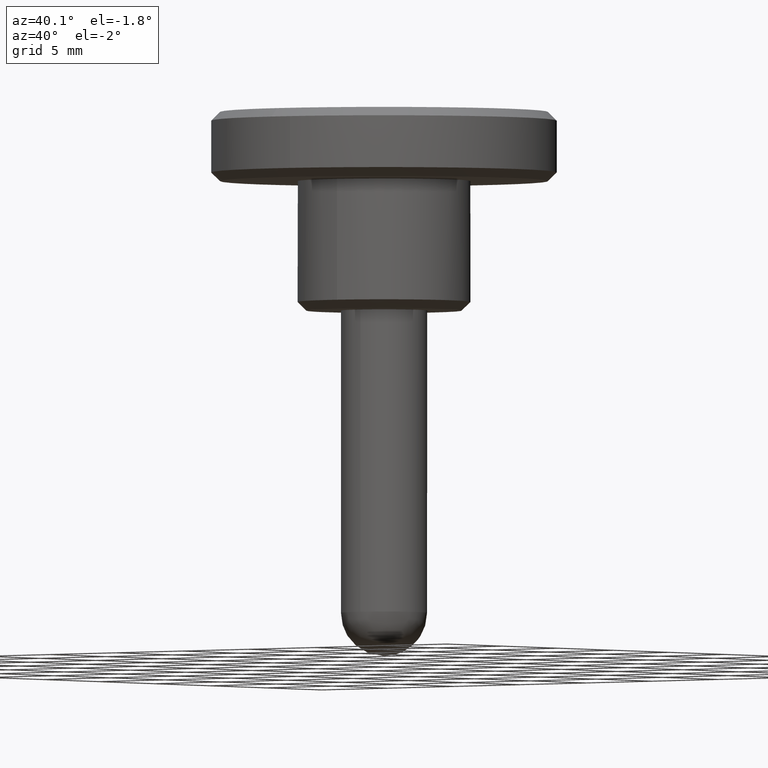
[diagram: clean part render]
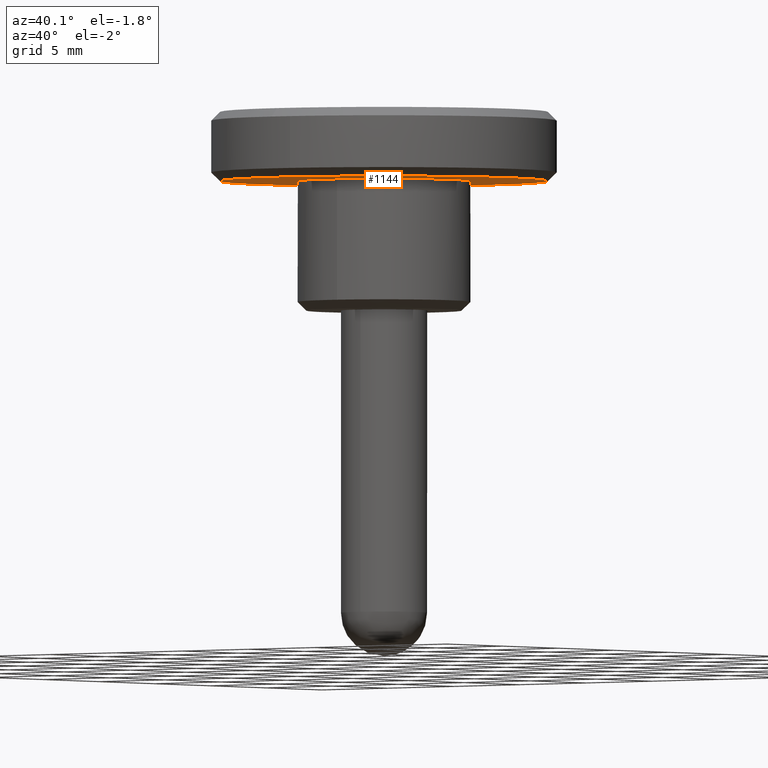
[diagram: same view with one face highlighted and labeled with its STEP entity id]
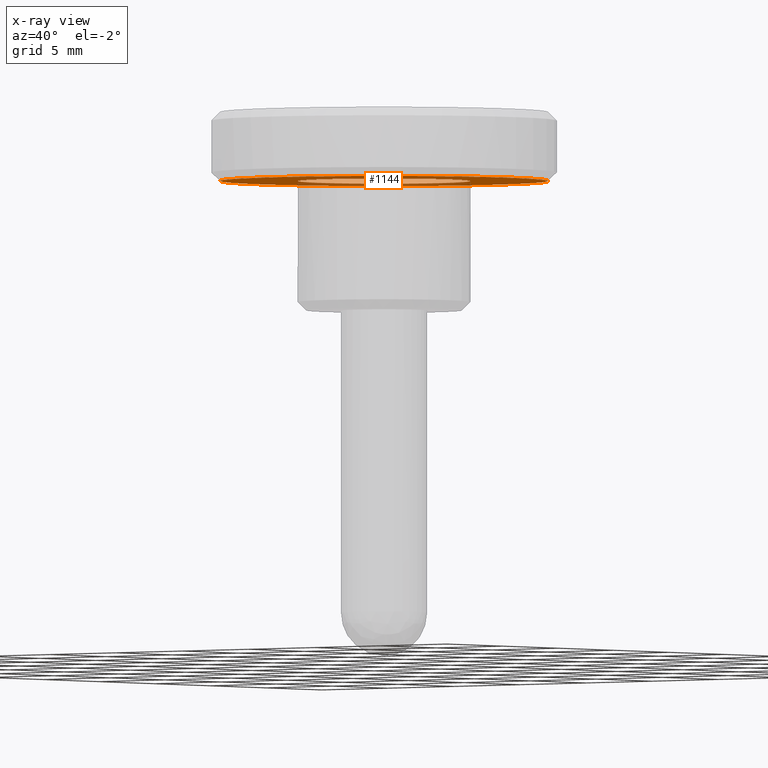
[diagram: x-ray of the same camera — body ghosted, the highlighted face saturated]
A machine part, auxiliary view. The second image highlights one B-rep face of the part: STEP entity #1144.
The next image is the same camera in x-ray: the body ghosted, the highlighted face saturated — about 25% of this face is hidden behind the body in this view.
In plain terms, the highlighted face is a freeform B-spline surface patch.
Its self-contained STEP definition (entity closure, byte-faithful):
#286=CARTESIAN_POINT('',(9.500000000000000,0.0,7.500000000000110));
#287=VERTEX_POINT('',#286);
#288=CARTESIAN_POINT('',(7.779228070748030,-5.452853438640519,7.500000000000470));
#289=VERTEX_POINT('',#288);
#290=CARTESIAN_POINT('',(9.500000000000000,0.0,7.500000000000110));
#291=CARTESIAN_POINT('',(9.500000000000000,-2.997941080184359,7.500000000000111));
#292=CARTESIAN_POINT('',(7.779228070748030,-5.452853438640519,7.500000000000470));
#300=(BOUNDED_CURVE()B_SPLINE_CURVE(2,(#290,#291,#292),.UNSPECIFIED.,.F.,.U.)B_SPLINE_CURVE_WITH_KNOTS((3,3),(0.0,0.098673726203164),.UNSPECIFIED.)CURVE()GEOMETRIC_REPRESENTATION_ITEM()RATIONAL_B_SPLINE_CURVE((1.0,0.884396538880152,0.860049271925728))REPRESENTATION_ITEM(''));
#301=EDGE_CURVE('',#287,#289,#300,.T.);
#303=CARTESIAN_POINT('',(-9.500000000000000,0.0,7.500000000000110));
#304=VERTEX_POINT('',#303);
#305=CARTESIAN_POINT('',(-9.500000000000000,0.0,7.500000000000110));
#306=CARTESIAN_POINT('',(-9.500000000000000,9.500000000000000,7.500000000000110));
#307=CARTESIAN_POINT('',(0.0,9.500000000000000,7.500000000000110));
#308=CARTESIAN_POINT('',(9.500000000000000,9.500000000000000,7.500000000000110));
#309=CARTESIAN_POINT('',(9.500000000000000,0.0,7.500000000000110));
#317=(BOUNDED_CURVE()B_SPLINE_CURVE(2,(#305,#306,#307,#308,#309),.UNSPECIFIED.,.F.,.U.)B_SPLINE_CURVE_WITH_KNOTS((3,2,3),(0.500000000000000,0.750000000000000,1.0),.UNSPECIFIED.)CURVE()GEOMETRIC_REPRESENTATION_ITEM()RATIONAL_B_SPLINE_CURVE((1.0,0.707106781186548,1.0,0.707106781186548,1.0))REPRESENTATION_ITEM(''));
#318=EDGE_CURVE('',#304,#287,#317,.T.);
#320=CARTESIAN_POINT('',(0.082902087267421,-9.499638269113834,7.500000000004551));
#321=VERTEX_POINT('',#320);
#322=CARTESIAN_POINT('',(0.082902087267421,-9.499638269113834,7.500000000004551));
#323=CARTESIAN_POINT('',(0.041451832829496,-9.500000000000000,7.500000000000111));
#324=CARTESIAN_POINT('',(0.0,-9.500000000000000,7.500000000000110));
#325=CARTESIAN_POINT('',(-9.500000000000000,-9.500000000000000,7.500000000000110));
#326=CARTESIAN_POINT('',(-9.500000000000000,0.0,7.500000000000110));
#334=(BOUNDED_CURVE()B_SPLINE_CURVE(2,(#322,#323,#324,#325,#326),.UNSPECIFIED.,.F.,.U.)B_SPLINE_CURVE_WITH_KNOTS((3,2,3),(0.248460105663796,0.250000000000000,0.500000000000000),.UNSPECIFIED.)CURVE()GEOMETRIC_REPRESENTATION_ITEM()RATIONAL_B_SPLINE_CURVE((0.996414028097588,0.998195901564946,1.0,0.707106781186548,1.0))REPRESENTATION_ITEM(''));
#335=EDGE_CURVE('',#321,#304,#334,.T.);
#430=CARTESIAN_POINT('',(7.779228070748030,-5.452853438640519,7.500000000000470));
#431=CARTESIAN_POINT('',(4.972542842353667,-9.456967020661594,7.500000000000111));
#432=CARTESIAN_POINT('',(0.082902087267421,-9.499638269113834,7.500000000004551));
#440=(BOUNDED_CURVE()B_SPLINE_CURVE(2,(#430,#431,#432),.UNSPECIFIED.,.F.,.U.)B_SPLINE_CURVE_WITH_KNOTS((3,3),(0.098673726203164,0.248460105663795),.UNSPECIFIED.)CURVE()GEOMETRIC_REPRESENTATION_ITEM()RATIONAL_B_SPLINE_CURVE((0.860049271925728,0.823090203821257,0.996414028097588))REPRESENTATION_ITEM(''));
#441=EDGE_CURVE('',#289,#321,#440,.T.);
#887=CARTESIAN_POINT('',(-0.043632685768200,4.999809615248630,7.500000000000000));
#888=VERTEX_POINT('',#887);
#894=CARTESIAN_POINT('',(5.0,0.0,7.500000000000000));
#895=VERTEX_POINT('',#894);
#896=CARTESIAN_POINT('',(-0.043632685768200,4.999809615248630,7.500000000000001));
#897=CARTESIAN_POINT('',(-0.021816762380311,4.999999999999999,7.500000000000000));
#898=CARTESIAN_POINT('',(0.0,5.0,7.500000000000000));
#899=CARTESIAN_POINT('',(5.000000000000001,5.000000000000001,7.500000000000000));
#900=CARTESIAN_POINT('',(5.0,0.0,7.500000000000000));
#908=(BOUNDED_CURVE()B_SPLINE_CURVE(2,(#896,#897,#898,#899,#900),.UNSPECIFIED.,.F.,.U.)B_SPLINE_CURVE_WITH_KNOTS((3,2,3),(0.248460105081864,0.250000000000000,0.500000000000000),.UNSPECIFIED.)CURVE()GEOMETRIC_REPRESENTATION_ITEM()RATIONAL_B_SPLINE_CURVE((0.996414026750837,0.998195900883171,1.0,0.707106781186548,1.0))REPRESENTATION_ITEM(''));
#909=EDGE_CURVE('',#888,#895,#908,.T.);
#911=CARTESIAN_POINT('',(0.620634893490197,-4.961331709224432,7.500000000000000));
#912=VERTEX_POINT('',#911);
#913=CARTESIAN_POINT('',(5.0,0.0,7.500000000000000));
#914=CARTESIAN_POINT('',(5.0,-4.413497588122099,7.499999999999999));
#915=CARTESIAN_POINT('',(0.620634893490197,-4.961331709224433,7.500000000000001));
#923=(BOUNDED_CURVE()B_SPLINE_CURVE(2,(#913,#914,#915),.UNSPECIFIED.,.F.,.U.)B_SPLINE_CURVE_WITH_KNOTS((3,3),(0.500000000000000,0.728526244963649),.UNSPECIFIED.)CURVE()GEOMETRIC_REPRESENTATION_ITEM()RATIONAL_B_SPLINE_CURVE((1.0,0.732264850116981,0.954005767814331))REPRESENTATION_ITEM(''));
#924=EDGE_CURVE('',#895,#912,#923,.T.);
#959=CARTESIAN_POINT('',(-5.0,0.0,7.500000000000000));
#960=VERTEX_POINT('',#959);
#961=CARTESIAN_POINT('',(0.620634893490197,-4.961331709224433,7.500000000000001));
#962=CARTESIAN_POINT('',(0.311522049263574,-5.0,7.500000000000000));
#963=CARTESIAN_POINT('',(0.0,-5.0,7.500000000000000));
#964=CARTESIAN_POINT('',(-5.000000000000001,-5.000000000000001,7.500000000000000));
#965=CARTESIAN_POINT('',(-5.0,0.0,7.500000000000000));
#973=(BOUNDED_CURVE()B_SPLINE_CURVE(2,(#961,#962,#963,#964,#965),.UNSPECIFIED.,.F.,.U.)B_SPLINE_CURVE_WITH_KNOTS((3,2,3),(0.728526244963649,0.750000000000000,1.0),.UNSPECIFIED.)CURVE()GEOMETRIC_REPRESENTATION_ITEM()RATIONAL_B_SPLINE_CURVE((0.954005767814331,0.974841931069566,1.0,0.707106781186548,1.0))REPRESENTATION_ITEM(''));
#974=EDGE_CURVE('',#912,#960,#973,.T.);
#976=CARTESIAN_POINT('',(-5.0,0.0,7.500000000000000));
#977=CARTESIAN_POINT('',(-5.0,4.956556036564801,7.500000000000000));
#978=CARTESIAN_POINT('',(-0.043632685768200,4.999809615248630,7.500000000000000));
#986=(BOUNDED_CURVE()B_SPLINE_CURVE(2,(#976,#977,#978),.UNSPECIFIED.,.F.,.U.)B_SPLINE_CURVE_WITH_KNOTS((3,3),(0.0,0.248460105081864),.UNSPECIFIED.)CURVE()GEOMETRIC_REPRESENTATION_ITEM()RATIONAL_B_SPLINE_CURVE((1.0,0.708910880303377,0.996414026750837))REPRESENTATION_ITEM(''));
#987=EDGE_CURVE('',#960,#888,#986,.T.);
#1127=CARTESIAN_POINT('',(-10.449049963174311,-10.448670594845110,7.500000000000110));
#1128=CARTESIAN_POINT('',(10.449050472794029,-10.448670594845110,7.500000000000110));
#1129=CARTESIAN_POINT('',(-10.449049963174311,10.449032424841221,7.500000000000110));
#1130=CARTESIAN_POINT('',(10.449050472794029,10.449032424841221,7.500000000000110));
#1131=B_SPLINE_SURFACE_WITH_KNOTS('',1,1,((#1127,#1129),(#1128,#1130)),.UNSPECIFIED.,.F.,.F.,.U.,(2,2),(2,2),(0.0,20.898100435968342),(0.0,20.897703019686318),.UNSPECIFIED.);
#1132=ORIENTED_EDGE('',*,*,#301,.T.);
#1133=ORIENTED_EDGE('',*,*,#441,.T.);
#1134=ORIENTED_EDGE('',*,*,#335,.T.);
#1135=ORIENTED_EDGE('',*,*,#318,.T.);
#1136=EDGE_LOOP('',(#1132,#1133,#1134,#1135));
#1137=FACE_OUTER_BOUND('',#1136,.T.);
#1138=ORIENTED_EDGE('',*,*,#987,.F.);
#1139=ORIENTED_EDGE('',*,*,#974,.F.);
#1140=ORIENTED_EDGE('',*,*,#924,.F.);
#1141=ORIENTED_EDGE('',*,*,#909,.F.);
#1142=EDGE_LOOP('',(#1138,#1139,#1140,#1141));
#1143=FACE_BOUND('',#1142,.T.);
#1144=ADVANCED_FACE('',(#1137,#1143),#1131,.F.);